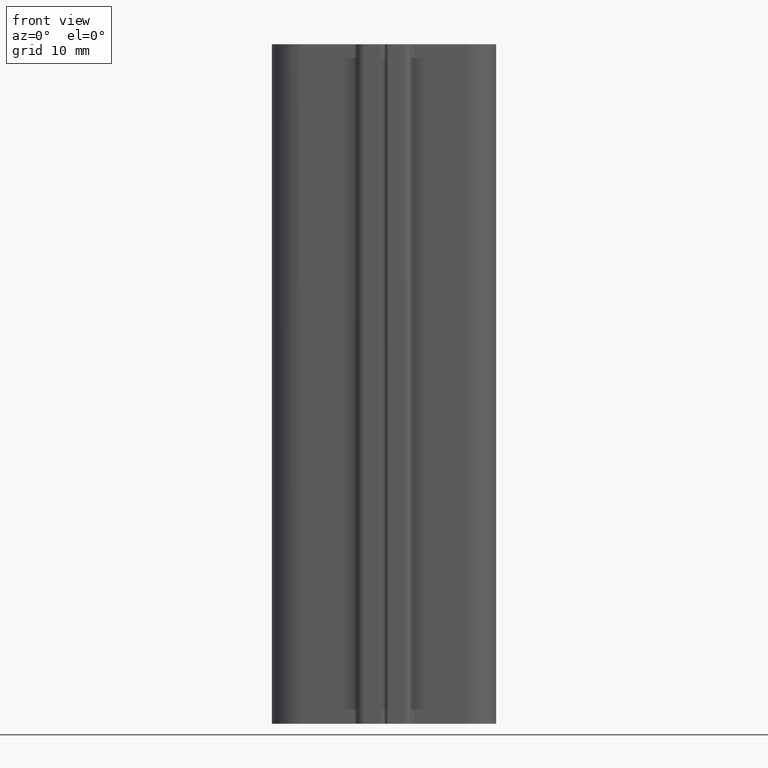
[diagram: clean part render]
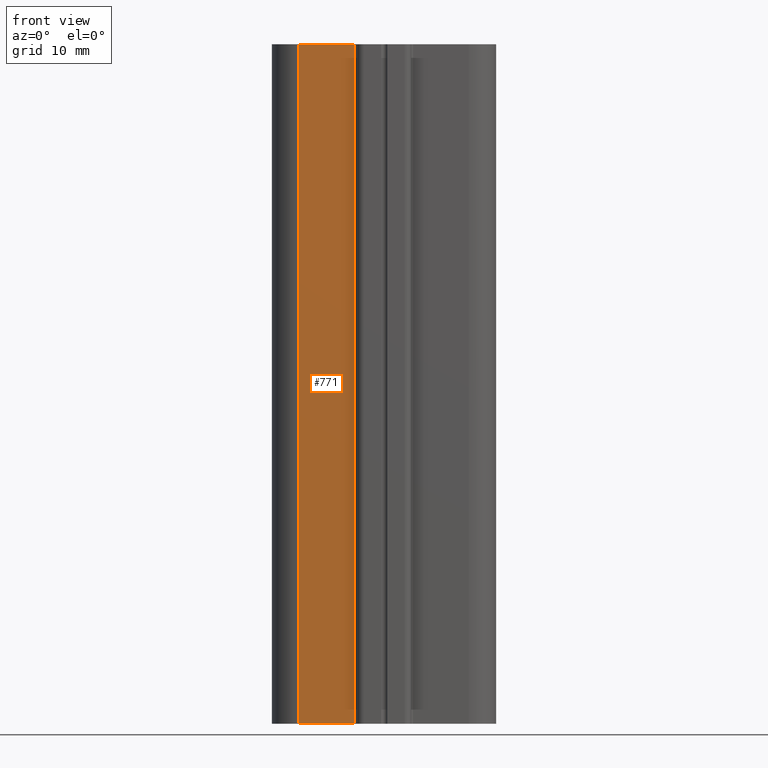
[diagram: same view with one face highlighted and labeled with its STEP entity id]
A machine part, front view. The second image highlights one B-rep face of the part: STEP entity #771.
In plain terms, the highlighted planar face has unit normal (-0, -1, 0).
Its self-contained STEP definition (entity closure, byte-faithful):
#71=FACE_OUTER_BOUND('',#111,.T.);
#111=EDGE_LOOP('',(#661,#662,#663,#664));
#175=LINE('',#1175,#245);
#223=LINE('',#1314,#293);
#224=LINE('',#1317,#294);
#225=LINE('',#1318,#295);
#245=VECTOR('',#921,8.20000000000011);
#293=VECTOR('',#1079,100.);
#294=VECTOR('',#1082,8.20000000000011);
#295=VECTOR('',#1083,100.);
#335=VERTEX_POINT('',#1172);
#336=VERTEX_POINT('',#1174);
#372=VERTEX_POINT('',#1312);
#373=VERTEX_POINT('',#1316);
#411=EDGE_CURVE('',#335,#336,#175,.T.);
#481=EDGE_CURVE('',#335,#372,#223,.T.);
#482=EDGE_CURVE('',#373,#372,#224,.T.);
#483=EDGE_CURVE('',#336,#373,#225,.T.);
#661=ORIENTED_EDGE('',*,*,#481,.T.);
#662=ORIENTED_EDGE('',*,*,#482,.F.);
#663=ORIENTED_EDGE('',*,*,#483,.F.);
#664=ORIENTED_EDGE('',*,*,#411,.F.);
#733=PLANE('',#855);
#771=ADVANCED_FACE('',(#71),#733,.T.);
#855=AXIS2_PLACEMENT_3D('',#1315,#1080,#1081);
#921=DIRECTION('',(-1.,5.41572207134216E-16,0.));
#1079=DIRECTION('',(0.,0.,1.));
#1080=DIRECTION('center_axis',(-5.41572207134216E-16,-1.,0.));
#1081=DIRECTION('ref_axis',(1.,-7.105427357601E-16,0.));
#1082=DIRECTION('',(1.,-5.41572207134216E-16,0.));
#1083=DIRECTION('',(0.,0.,1.));
#1172=CARTESIAN_POINT('',(-4.29999999999987,-18.0000000000001,-50.));
#1174=CARTESIAN_POINT('',(-12.5,-18.0000000000001,-50.));
#1175=CARTESIAN_POINT('',(-12.5,-18.0000000000001,-50.));
#1312=CARTESIAN_POINT('',(-4.29999999999987,-18.0000000000001,50.));
#1314=CARTESIAN_POINT('',(-4.29999999999987,-18.0000000000001,0.));
#1315=CARTESIAN_POINT('Origin',(-12.5,-18.0000000000001,0.));
#1316=CARTESIAN_POINT('',(-12.5,-18.0000000000001,50.));
#1317=CARTESIAN_POINT('',(-12.5,-18.0000000000001,50.));
#1318=CARTESIAN_POINT('',(-12.5,-18.0000000000001,0.));